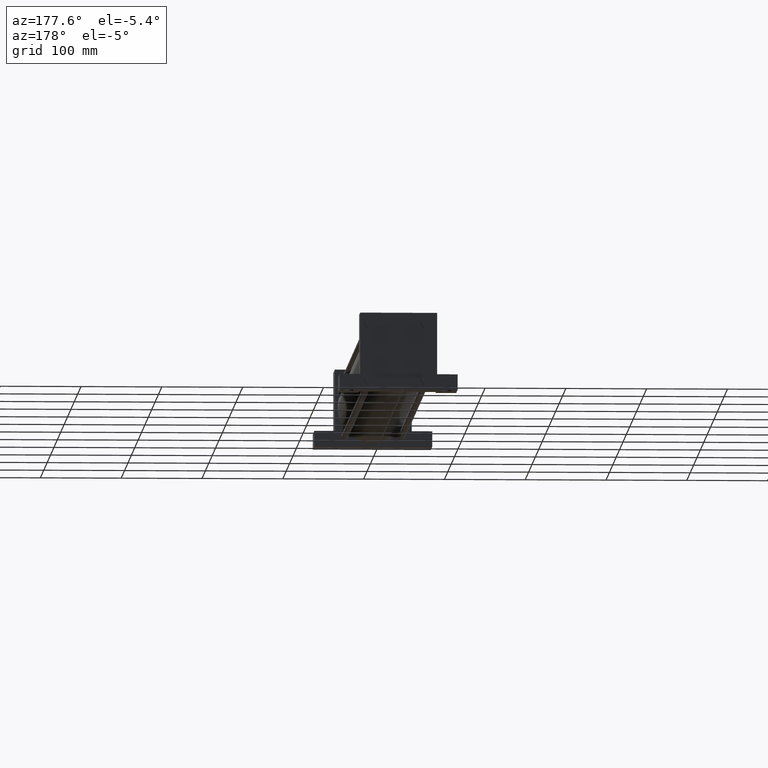
[diagram: clean part render]
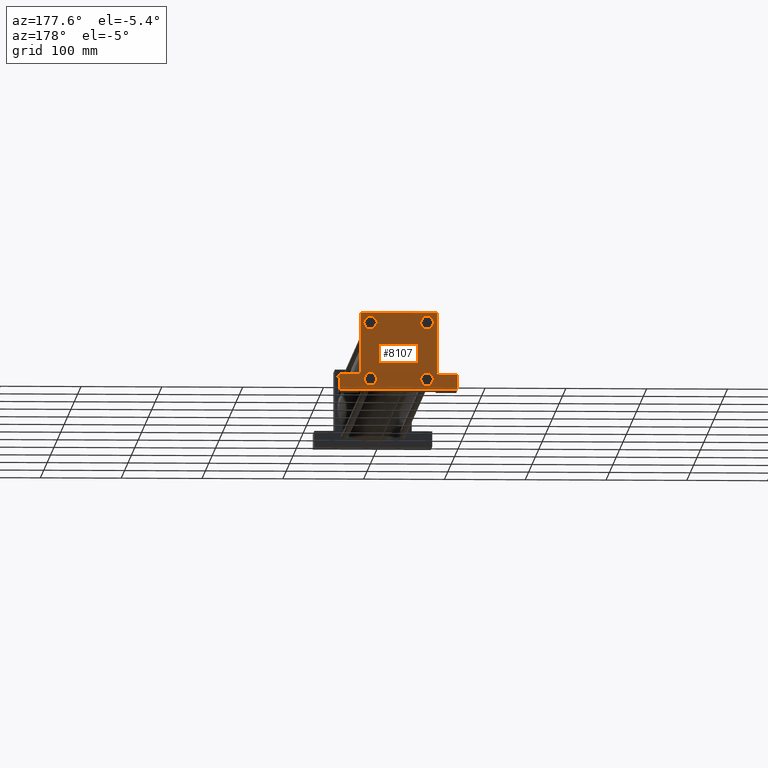
[diagram: same view with one face highlighted and labeled with its STEP entity id]
A machine part, auxiliary view. The second image highlights one B-rep face of the part: STEP entity #8107.
In plain terms, the highlighted planar face has unit normal (0, -1, 0).
Its self-contained STEP definition (entity closure, byte-faithful):
#2187=VERTEX_POINT('',#2188);
#2188=CARTESIAN_POINT('',(-3.092754875E+001,8.350250000E+002,-2.790825547E+001));
#2189=EDGE_CURVE('',#2194,#2187,#2190,.T.);
#2190=LINE('',#2191,#2192);
#2191=CARTESIAN_POINT('',(-2.680311014E+001,8.350250000E+002,-3.505200000E+001));
#2192=VECTOR('',#2193,1.0E+000);
#2193=DIRECTION('',(-5.01129111258307E-001,0.0E+000,
   8.65372528943148E-001));
#2194=VERTEX_POINT('',#2195);
#2195=CARTESIAN_POINT('',(-2.680311014E+001,8.350250000E+002,-3.505200000E+001));
#2219=EDGE_CURVE('',#2224,#2194,#2220,.T.);
#2220=LINE('',#2221,#2222);
#2221=CARTESIAN_POINT('',(-3.092754875E+001,8.350250000E+002,-4.219574453E+001));
#2222=VECTOR('',#2223,1.0E+000);
#2223=DIRECTION('',(5.01129111258308E-001,0.0E+000,8.65372528943147E-001));
#2224=VERTEX_POINT('',#2225);
#2225=CARTESIAN_POINT('',(-3.092754875E+001,8.350250000E+002,-4.219574453E+001));
#2249=EDGE_CURVE('',#2254,#2224,#2250,.T.);
#2250=LINE('',#2251,#2252);
#2251=CARTESIAN_POINT('',(-3.917645125E+001,8.350250000E+002,-4.219574453E+001));
#2252=VECTOR('',#2253,1.0E+000);
#2253=DIRECTION('',(1.0E+000,0.0E+000,0.0E+000));
#2254=VERTEX_POINT('',#2255);
#2255=CARTESIAN_POINT('',(-3.917645125E+001,8.350250000E+002,-4.219574453E+001));
#2279=EDGE_CURVE('',#2284,#2254,#2280,.T.);
#2280=LINE('',#2281,#2282);
#2281=CARTESIAN_POINT('',(-4.330088986E+001,8.350250000E+002,-3.505200000E+001));
#2282=VECTOR('',#2283,1.0E+000);
#2283=DIRECTION('',(5.01129111258307E-001,0.0E+000,
   -8.65372528943148E-001));
#2284=VERTEX_POINT('',#2285);
#2285=CARTESIAN_POINT('',(-4.330088986E+001,8.350250000E+002,-3.505200000E+001));
#2309=EDGE_CURVE('',#2314,#2284,#2310,.T.);
#2310=LINE('',#2311,#2312);
#2311=CARTESIAN_POINT('',(-3.917645125E+001,8.350250000E+002,-2.790825547E+001));
#2312=VECTOR('',#2313,1.0E+000);
#2313=DIRECTION('',(-5.01129111258308E-001,0.0E+000,
   -8.65372528943147E-001));
#2314=VERTEX_POINT('',#2315);
#2315=CARTESIAN_POINT('',(-3.917645125E+001,8.350250000E+002,-2.790825547E+001));
#2337=EDGE_CURVE('',#2187,#2314,#2338,.T.);
#2338=LINE('',#2339,#2340);
#2339=CARTESIAN_POINT('',(-3.092754875E+001,8.350250000E+002,-2.790825547E+001));
#2340=VECTOR('',#2341,1.0E+000);
#2341=DIRECTION('',(-1.0E+000,0.0E+000,0.0E+000));
#2418=VERTEX_POINT('',#2419);
#2419=CARTESIAN_POINT('',(-3.917645125E+001,8.350250000E+002,2.790825547E+001));
#2420=EDGE_CURVE('',#2425,#2418,#2421,.T.);
#2421=LINE('',#2422,#2423);
#2422=CARTESIAN_POINT('',(-4.330088986E+001,8.350250000E+002,3.505200000E+001));
#2423=VECTOR('',#2424,1.0E+000);
#2424=DIRECTION('',(5.01129111258307E-001,0.0E+000,
   -8.65372528943148E-001));
#2425=VERTEX_POINT('',#2426);
#2426=CARTESIAN_POINT('',(-4.330088986E+001,8.350250000E+002,3.505200000E+001));
#2450=EDGE_CURVE('',#2455,#2425,#2451,.T.);
#2451=LINE('',#2452,#2453);
#2452=CARTESIAN_POINT('',(-3.917645125E+001,8.350250000E+002,4.219574453E+001));
#2453=VECTOR('',#2454,1.0E+000);
#2454=DIRECTION('',(-5.01129111258308E-001,0.0E+000,
   -8.65372528943147E-001));
#2455=VERTEX_POINT('',#2456);
#2456=CARTESIAN_POINT('',(-3.917645125E+001,8.350250000E+002,4.219574453E+001));
#2480=EDGE_CURVE('',#2485,#2455,#2481,.T.);
#2481=LINE('',#2482,#2483);
#2482=CARTESIAN_POINT('',(-3.092754875E+001,8.350250000E+002,4.219574453E+001));
#2483=VECTOR('',#2484,1.0E+000);
#2484=DIRECTION('',(-1.0E+000,0.0E+000,0.0E+000));
#2485=VERTEX_POINT('',#2486);
#2486=CARTESIAN_POINT('',(-3.092754875E+001,8.350250000E+002,4.219574453E+001));
#2510=EDGE_CURVE('',#2515,#2485,#2511,.T.);
#2511=LINE('',#2512,#2513);
#2512=CARTESIAN_POINT('',(-2.680311014E+001,8.350250000E+002,3.505200000E+001));
#2513=VECTOR('',#2514,1.0E+000);
#2514=DIRECTION('',(-5.01129111258307E-001,0.0E+000,
   8.65372528943148E-001));
#2515=VERTEX_POINT('',#2516);
#2516=CARTESIAN_POINT('',(-2.680311014E+001,8.350250000E+002,3.505200000E+001));
#2540=EDGE_CURVE('',#2545,#2515,#2541,.T.);
#2541=LINE('',#2542,#2543);
#2542=CARTESIAN_POINT('',(-3.092754875E+001,8.350250000E+002,2.790825547E+001));
#2543=VECTOR('',#2544,1.0E+000);
#2544=DIRECTION('',(5.01129111258308E-001,0.0E+000,8.65372528943147E-001));
#2545=VERTEX_POINT('',#2546);
#2546=CARTESIAN_POINT('',(-3.092754875E+001,8.350250000E+002,2.790825547E+001));
#2568=EDGE_CURVE('',#2418,#2545,#2569,.T.);
#2569=LINE('',#2570,#2571);
#2570=CARTESIAN_POINT('',(-3.917645125E+001,8.350250000E+002,2.790825547E+001));
#2571=VECTOR('',#2572,1.0E+000);
#2572=DIRECTION('',(1.0E+000,0.0E+000,0.0E+000));
#2649=VERTEX_POINT('',#2650);
#2650=CARTESIAN_POINT('',(3.092754875E+001,8.350250000E+002,2.790825547E+001));
#2651=EDGE_CURVE('',#2656,#2649,#2652,.T.);
#2652=LINE('',#2653,#2654);
#2653=CARTESIAN_POINT('',(2.680311014E+001,8.350250000E+002,3.505200000E+001));
#2654=VECTOR('',#2655,1.0E+000);
#2655=DIRECTION('',(5.01129111258307E-001,0.0E+000,
   -8.65372528943148E-001));
#2656=VERTEX_POINT('',#2657);
#2657=CARTESIAN_POINT('',(2.680311014E+001,8.350250000E+002,3.505200000E+001));
#2681=EDGE_CURVE('',#2686,#2656,#2682,.T.);
#2682=LINE('',#2683,#2684);
#2683=CARTESIAN_POINT('',(3.092754875E+001,8.350250000E+002,4.219574453E+001));
#2684=VECTOR('',#2685,1.0E+000);
#2685=DIRECTION('',(-5.01129111258308E-001,0.0E+000,
   -8.65372528943147E-001));
#2686=VERTEX_POINT('',#2687);
#2687=CARTESIAN_POINT('',(3.092754875E+001,8.350250000E+002,4.219574453E+001));
#2711=EDGE_CURVE('',#2716,#2686,#2712,.T.);
#2712=LINE('',#2713,#2714);
#2713=CARTESIAN_POINT('',(3.917645125E+001,8.350250000E+002,4.219574453E+001));
#2714=VECTOR('',#2715,1.0E+000);
#2715=DIRECTION('',(-1.0E+000,0.0E+000,0.0E+000));
#2716=VERTEX_POINT('',#2717);
#2717=CARTESIAN_POINT('',(3.917645125E+001,8.350250000E+002,4.219574453E+001));
#2741=EDGE_CURVE('',#2746,#2716,#2742,.T.);
#2742=LINE('',#2743,#2744);
#2743=CARTESIAN_POINT('',(4.330088986E+001,8.350250000E+002,3.505200000E+001));
#2744=VECTOR('',#2745,1.0E+000);
#2745=DIRECTION('',(-5.01129111258307E-001,0.0E+000,
   8.65372528943148E-001));
#2746=VERTEX_POINT('',#2747);
#2747=CARTESIAN_POINT('',(4.330088986E+001,8.350250000E+002,3.505200000E+001));
#2771=EDGE_CURVE('',#2776,#2746,#2772,.T.);
#2772=LINE('',#2773,#2774);
#2773=CARTESIAN_POINT('',(3.917645125E+001,8.350250000E+002,2.790825547E+001));
#2774=VECTOR('',#2775,1.0E+000);
#2775=DIRECTION('',(5.01129111258308E-001,0.0E+000,8.65372528943147E-001));
#2776=VERTEX_POINT('',#2777);
#2777=CARTESIAN_POINT('',(3.917645125E+001,8.350250000E+002,2.790825547E+001));
#2799=EDGE_CURVE('',#2649,#2776,#2800,.T.);
#2800=LINE('',#2801,#2802);
#2801=CARTESIAN_POINT('',(3.092754875E+001,8.350250000E+002,2.790825547E+001));
#2802=VECTOR('',#2803,1.0E+000);
#2803=DIRECTION('',(1.0E+000,0.0E+000,0.0E+000));
#2880=VERTEX_POINT('',#2881);
#2881=CARTESIAN_POINT('',(3.917645125E+001,8.350250000E+002,-2.790825547E+001));
#2882=EDGE_CURVE('',#2887,#2880,#2883,.T.);
#2883=LINE('',#2884,#2885);
#2884=CARTESIAN_POINT('',(4.330088986E+001,8.350250000E+002,-3.505200000E+001));
#2885=VECTOR('',#2886,1.0E+000);
#2886=DIRECTION('',(-5.01129111258307E-001,0.0E+000,
   8.65372528943148E-001));
#2887=VERTEX_POINT('',#2888);
#2888=CARTESIAN_POINT('',(4.330088986E+001,8.350250000E+002,-3.505200000E+001));
#2912=EDGE_CURVE('',#2917,#2887,#2913,.T.);
#2913=LINE('',#2914,#2915);
#2914=CARTESIAN_POINT('',(3.917645125E+001,8.350250000E+002,-4.219574453E+001));
#2915=VECTOR('',#2916,1.0E+000);
#2916=DIRECTION('',(5.01129111258308E-001,0.0E+000,8.65372528943147E-001));
#2917=VERTEX_POINT('',#2918);
#2918=CARTESIAN_POINT('',(3.917645125E+001,8.350250000E+002,-4.219574453E+001));
#2942=EDGE_CURVE('',#2947,#2917,#2943,.T.);
#2943=LINE('',#2944,#2945);
#2944=CARTESIAN_POINT('',(3.092754875E+001,8.350250000E+002,-4.219574453E+001));
#2945=VECTOR('',#2946,1.0E+000);
#2946=DIRECTION('',(1.0E+000,0.0E+000,0.0E+000));
#2947=VERTEX_POINT('',#2948);
#2948=CARTESIAN_POINT('',(3.092754875E+001,8.350250000E+002,-4.219574453E+001));
#2972=EDGE_CURVE('',#2977,#2947,#2973,.T.);
#2973=LINE('',#2974,#2975);
#2974=CARTESIAN_POINT('',(2.680311014E+001,8.350250000E+002,-3.505200000E+001));
#2975=VECTOR('',#2976,1.0E+000);
#2976=DIRECTION('',(5.01129111258307E-001,0.0E+000,
   -8.65372528943148E-001));
#2977=VERTEX_POINT('',#2978);
#2978=CARTESIAN_POINT('',(2.680311014E+001,8.350250000E+002,-3.505200000E+001));
#3002=EDGE_CURVE('',#3007,#2977,#3003,.T.);
#3003=LINE('',#3004,#3005);
#3004=CARTESIAN_POINT('',(3.092754875E+001,8.350250000E+002,-2.790825547E+001));
#3005=VECTOR('',#3006,1.0E+000);
#3006=DIRECTION('',(-5.01129111258308E-001,0.0E+000,
   -8.65372528943147E-001));
#3007=VERTEX_POINT('',#3008);
#3008=CARTESIAN_POINT('',(3.092754875E+001,8.350250000E+002,-2.790825547E+001));
#3030=EDGE_CURVE('',#2880,#3007,#3031,.T.);
#3031=LINE('',#3032,#3033);
#3032=CARTESIAN_POINT('',(3.917645125E+001,8.350250000E+002,-2.790825547E+001));
#3033=VECTOR('',#3034,1.0E+000);
#3034=DIRECTION('',(-1.0E+000,0.0E+000,0.0E+000));
#3474=VERTEX_POINT('',#3475);
#3475=CARTESIAN_POINT('',(-7.302500000E+001,8.350250000E+002,-4.762500000E+001));
#3476=EDGE_CURVE('',#3481,#3474,#3477,.T.);
#3477=LINE('',#3478,#3479);
#3478=CARTESIAN_POINT('',(4.762500000E+001,8.350250000E+002,-4.762500000E+001));
#3479=VECTOR('',#3480,1.0E+000);
#3480=DIRECTION('',(-1.0E+000,0.0E+000,0.0E+000));
#3481=VERTEX_POINT('',#3482);
#3482=CARTESIAN_POINT('',(7.302500000E+001,8.350250000E+002,-4.762500000E+001));
#3525=VERTEX_POINT('',#3527);
#3527=CARTESIAN_POINT('',(4.762500000E+001,8.350250000E+002,-2.857500000E+001));
#3544=VERTEX_POINT('',#3545);
#3545=CARTESIAN_POINT('',(7.302500000E+001,8.350250000E+002,-2.857500000E+001));
#3546=EDGE_CURVE('',#3544,#3525,#3547,.T.);
#3547=LINE('',#3548,#3549);
#3548=CARTESIAN_POINT('',(7.302500000E+001,8.350250000E+002,-2.857500000E+001));
#3549=VECTOR('',#3550,1.0E+000);
#3550=DIRECTION('',(-1.0E+000,0.0E+000,0.0E+000));
#3567=EDGE_CURVE('',#3544,#3481,#3568,.T.);
#3568=LINE('',#3569,#3570);
#3569=CARTESIAN_POINT('',(7.302500000E+001,8.350250000E+002,-2.857500000E+001));
#3570=VECTOR('',#3571,1.0E+000);
#3571=DIRECTION('',(0.0E+000,0.0E+000,-1.0E+000));
#3624=VERTEX_POINT('',#3626);
#3626=CARTESIAN_POINT('',(-4.762500000E+001,8.350250000E+002,-2.857500000E+001));
#3628=EDGE_CURVE('',#3633,#3624,#3629,.T.);
#3629=LINE('',#3630,#3631);
#3630=CARTESIAN_POINT('',(-7.302500000E+001,8.350250000E+002,-2.857500000E+001));
#3631=VECTOR('',#3632,1.0E+000);
#3632=DIRECTION('',(1.0E+000,0.0E+000,0.0E+000));
#3633=VERTEX_POINT('',#3634);
#3634=CARTESIAN_POINT('',(-7.302500000E+001,8.350250000E+002,-2.857500000E+001));
#3666=EDGE_CURVE('',#3633,#3474,#3667,.T.);
#3667=LINE('',#3668,#3669);
#3668=CARTESIAN_POINT('',(-7.302500000E+001,8.350250000E+002,-2.857500000E+001));
#3669=VECTOR('',#3670,1.0E+000);
#3670=DIRECTION('',(0.0E+000,0.0E+000,-1.0E+000));
#3708=FACE_OUTER_BOUND('',#3713,.T.);
#3709=FACE_BOUND('',#3714,.T.);
#3710=FACE_BOUND('',#3715,.T.);
#3711=FACE_BOUND('',#3716,.T.);
#3712=FACE_BOUND('',#3717,.T.);
#3713=EDGE_LOOP('',(#3718,#3719,#3720,#3721,#3722,#3723));
#3714=EDGE_LOOP('',(#3724,#3725,#3726,#3727,#3728,#3729));
#3715=EDGE_LOOP('',(#3730,#3731,#3732,#3733,#3734,#3735));
#3716=EDGE_LOOP('',(#3736,#3737,#3738,#3739,#3740,#3741));
#3717=EDGE_LOOP('',(#3742,#3743,#3744,#3745,#3746,#3747,#3748,#3749));
#3718=ORIENTED_EDGE('',*,*,#2189,.T.);
#3719=ORIENTED_EDGE('',*,*,#2337,.T.);
#3720=ORIENTED_EDGE('',*,*,#2309,.T.);
#3721=ORIENTED_EDGE('',*,*,#2279,.T.);
#3722=ORIENTED_EDGE('',*,*,#2249,.T.);
#3723=ORIENTED_EDGE('',*,*,#2219,.T.);
#3724=ORIENTED_EDGE('',*,*,#2420,.T.);
#3725=ORIENTED_EDGE('',*,*,#2568,.T.);
#3726=ORIENTED_EDGE('',*,*,#2540,.T.);
#3727=ORIENTED_EDGE('',*,*,#2510,.T.);
#3728=ORIENTED_EDGE('',*,*,#2480,.T.);
#3729=ORIENTED_EDGE('',*,*,#2450,.T.);
#3730=ORIENTED_EDGE('',*,*,#2651,.T.);
#3731=ORIENTED_EDGE('',*,*,#2799,.T.);
#3732=ORIENTED_EDGE('',*,*,#2771,.T.);
#3733=ORIENTED_EDGE('',*,*,#2741,.T.);
#3734=ORIENTED_EDGE('',*,*,#2711,.T.);
#3735=ORIENTED_EDGE('',*,*,#2681,.T.);
#3736=ORIENTED_EDGE('',*,*,#2882,.T.);
#3737=ORIENTED_EDGE('',*,*,#3030,.T.);
#3738=ORIENTED_EDGE('',*,*,#3002,.T.);
#3739=ORIENTED_EDGE('',*,*,#2972,.T.);
#3740=ORIENTED_EDGE('',*,*,#2942,.T.);
#3741=ORIENTED_EDGE('',*,*,#2912,.T.);
#3742=ORIENTED_EDGE('',*,*,#3567,.T.);
#3743=ORIENTED_EDGE('',*,*,#3476,.T.);
#3744=ORIENTED_EDGE('',*,*,#3666,.F.);
#3745=ORIENTED_EDGE('',*,*,#3628,.T.);
#3746=ORIENTED_EDGE('',*,*,#3750,.F.);
#3747=ORIENTED_EDGE('',*,*,#3757,.F.);
#3748=ORIENTED_EDGE('',*,*,#3764,.F.);
#3749=ORIENTED_EDGE('',*,*,#3546,.F.);
#3750=EDGE_CURVE('',#3755,#3624,#3751,.T.);
#3751=LINE('',#3752,#3753);
#3752=CARTESIAN_POINT('',(-4.762500000E+001,8.350250000E+002,4.762500000E+001));
#3753=VECTOR('',#3754,1.0E+000);
#3754=DIRECTION('',(0.0E+000,0.0E+000,-1.0E+000));
#3755=VERTEX_POINT('',#3756);
#3756=CARTESIAN_POINT('',(-4.762500000E+001,8.350250000E+002,4.762500000E+001));
#3757=EDGE_CURVE('',#3762,#3755,#3758,.T.);
#3758=LINE('',#3759,#3760);
#3759=CARTESIAN_POINT('',(4.762500000E+001,8.350250000E+002,4.762500000E+001));
#3760=VECTOR('',#3761,1.0E+000);
#3761=DIRECTION('',(-1.0E+000,0.0E+000,0.0E+000));
#3762=VERTEX_POINT('',#3763);
#3763=CARTESIAN_POINT('',(4.762500000E+001,8.350250000E+002,4.762500000E+001));
#3764=EDGE_CURVE('',#3525,#3762,#3765,.T.);
#3765=LINE('',#3766,#3767);
#3766=CARTESIAN_POINT('',(4.762500000E+001,8.350250000E+002,-4.762500000E+001));
#3767=VECTOR('',#3768,1.0E+000);
#3768=DIRECTION('',(0.0E+000,0.0E+000,1.0E+000));
#3769=PLANE('',#3770);
#3770=AXIS2_PLACEMENT_3D('',#3771,#3772,#3773);
#3771=CARTESIAN_POINT('',(4.762500000E+001,8.350250000E+002,-4.762500000E+001));
#3772=DIRECTION('',(0.0E+000,-1.0E+000,0.0E+000));
#3773=DIRECTION('',(0.0E+000,0.0E+000,-1.0E+000));
#8107=ADVANCED_FACE('',(#3708,#3709,#3710,#3711,#3712),#3769,.F.);